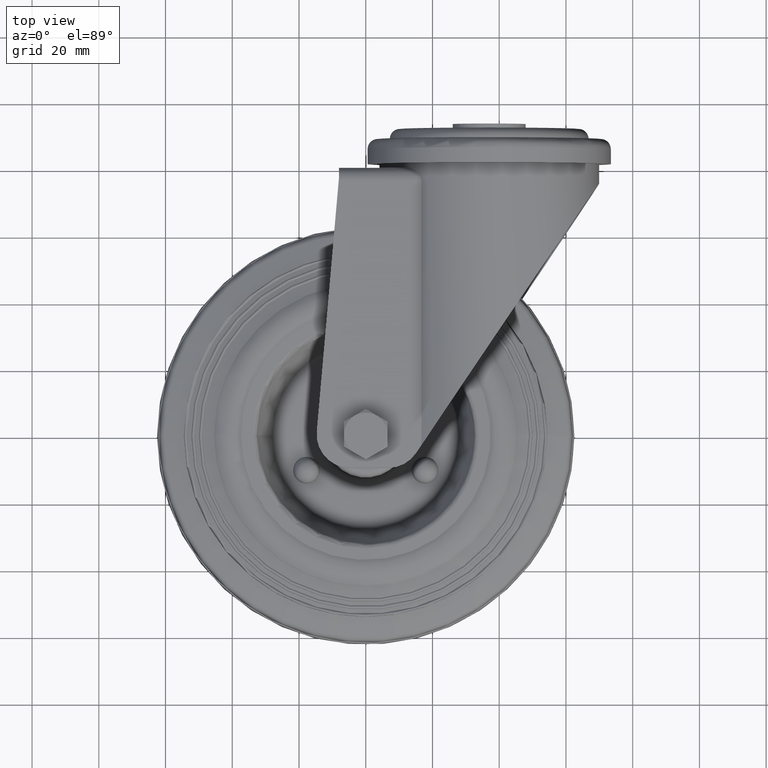
[diagram: clean part render]
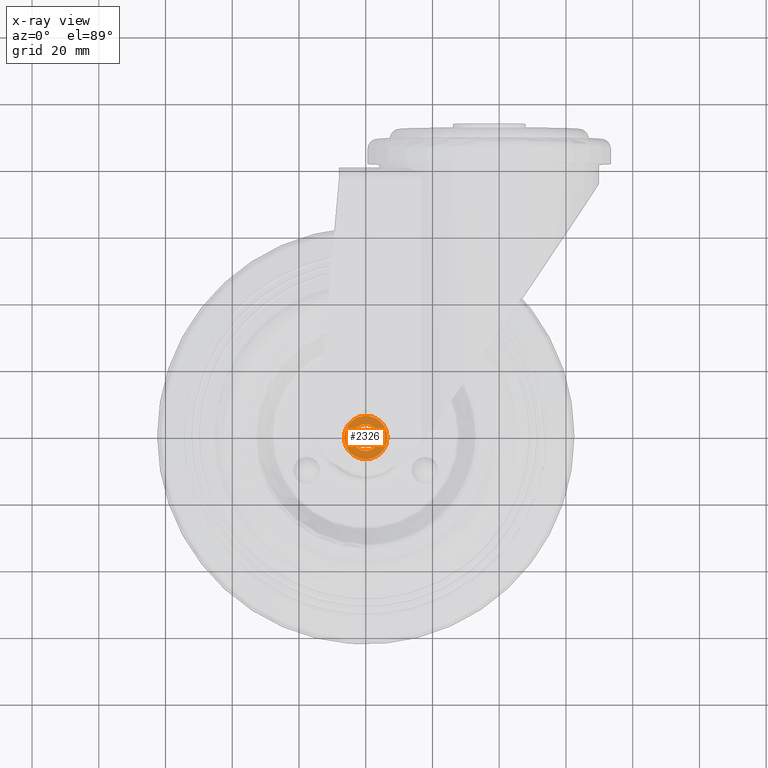
[diagram: x-ray — body ghosted, one internal face saturated and labeled with its STEP entity id]
A machine part, top view, then the same camera in x-ray: the body is ghosted and one INTERNAL B-rep face — a face not visible from any outside direction — is saturated and labeled: STEP entity #2326.
In plain terms, the highlighted planar face has unit normal (0, 0, -1).
Its self-contained STEP definition (entity closure, byte-faithful):
#263=FACE_BOUND('',#659,.T.);
#311=CIRCLE('',#2659,6.5);
#312=CIRCLE('',#2661,6.5);
#313=CIRCLE('',#2663,6.5);
#314=CIRCLE('',#2665,6.5);
#315=CIRCLE('',#2667,6.5);
#321=CIRCLE('',#2679,6.5);
#322=CIRCLE('',#2680,4.);
#501=FACE_OUTER_BOUND('',#658,.T.);
#658=EDGE_LOOP('',(#1687,#1688,#1689,#1690,#1691,#1692));
#659=EDGE_LOOP('',(#1693));
#1062=VERTEX_POINT('',#3884);
#1064=VERTEX_POINT('',#3889);
#1065=VERTEX_POINT('',#3895);
#1068=VERTEX_POINT('',#3906);
#1069=VERTEX_POINT('',#3915);
#1071=VERTEX_POINT('',#3925);
#1084=VERTEX_POINT('',#3987);
#1290=EDGE_CURVE('',#1064,#1062,#311,.T.);
#1291=EDGE_CURVE('',#1065,#1064,#312,.T.);
#1295=EDGE_CURVE('',#1068,#1065,#313,.T.);
#1297=EDGE_CURVE('',#1069,#1068,#314,.T.);
#1300=EDGE_CURVE('',#1071,#1069,#315,.T.);
#1318=EDGE_CURVE('',#1062,#1071,#321,.T.);
#1319=EDGE_CURVE('',#1084,#1084,#322,.T.);
#1687=ORIENTED_EDGE('',*,*,#1295,.F.);
#1688=ORIENTED_EDGE('',*,*,#1297,.F.);
#1689=ORIENTED_EDGE('',*,*,#1300,.F.);
#1690=ORIENTED_EDGE('',*,*,#1318,.F.);
#1691=ORIENTED_EDGE('',*,*,#1290,.F.);
#1692=ORIENTED_EDGE('',*,*,#1291,.F.);
#1693=ORIENTED_EDGE('',*,*,#1319,.T.);
#2249=PLANE('',#2678);
#2326=ADVANCED_FACE('',(#501,#263),#2249,.F.);
#2659=AXIS2_PLACEMENT_3D('',#3893,#3056,#3057);
#2661=AXIS2_PLACEMENT_3D('',#3896,#3060,#3061);
#2663=AXIS2_PLACEMENT_3D('',#3910,#3064,#3065);
#2665=AXIS2_PLACEMENT_3D('',#3916,#3068,#3069);
#2667=AXIS2_PLACEMENT_3D('',#3926,#3072,#3073);
#2678=AXIS2_PLACEMENT_3D('',#3985,#3094,#3095);
#2679=AXIS2_PLACEMENT_3D('',#3986,#3096,#3097);
#2680=AXIS2_PLACEMENT_3D('',#3988,#3098,#3099);
#3056=DIRECTION('center_axis',(1.,0.,0.));
#3057=DIRECTION('ref_axis',(0.,0.,-1.));
#3060=DIRECTION('center_axis',(1.,0.,0.));
#3061=DIRECTION('ref_axis',(0.,0.,-1.));
#3064=DIRECTION('center_axis',(1.,0.,0.));
#3065=DIRECTION('ref_axis',(0.,0.,-1.));
#3068=DIRECTION('center_axis',(1.,0.,0.));
#3069=DIRECTION('ref_axis',(0.,0.,-1.));
#3072=DIRECTION('center_axis',(1.,0.,0.));
#3073=DIRECTION('ref_axis',(0.,0.,-1.));
#3094=DIRECTION('center_axis',(1.,0.,0.));
#3095=DIRECTION('ref_axis',(0.,0.,-1.));
#3096=DIRECTION('center_axis',(1.,0.,0.));
#3097=DIRECTION('ref_axis',(0.,0.,-1.));
#3098=DIRECTION('center_axis',(1.,0.,0.));
#3099=DIRECTION('ref_axis',(0.,0.,-1.));
#3884=CARTESIAN_POINT('',(0.,-5.62916512459885,3.25));
#3889=CARTESIAN_POINT('',(0.,0.,6.5));
#3893=CARTESIAN_POINT('Origin',(0.,0.,0.));
#3895=CARTESIAN_POINT('',(0.,5.62916512459885,3.25));
#3896=CARTESIAN_POINT('Origin',(0.,0.,0.));
#3906=CARTESIAN_POINT('',(0.,5.62916512459885,-3.25));
#3910=CARTESIAN_POINT('Origin',(0.,0.,0.));
#3915=CARTESIAN_POINT('',(0.,0.,-6.5));
#3916=CARTESIAN_POINT('Origin',(0.,0.,0.));
#3925=CARTESIAN_POINT('',(0.,-5.62916512459885,-3.25));
#3926=CARTESIAN_POINT('Origin',(0.,0.,0.));
#3985=CARTESIAN_POINT('Origin',(0.,0.,0.));
#3986=CARTESIAN_POINT('Origin',(0.,0.,0.));
#3987=CARTESIAN_POINT('',(0.,0.,-4.));
#3988=CARTESIAN_POINT('Origin',(0.,0.,0.));